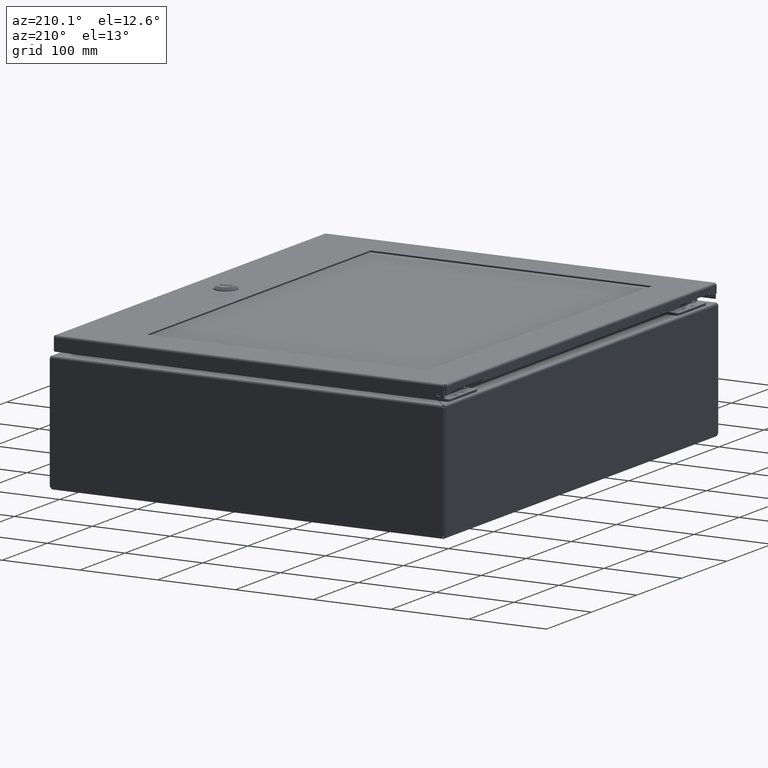
[diagram: clean part render]
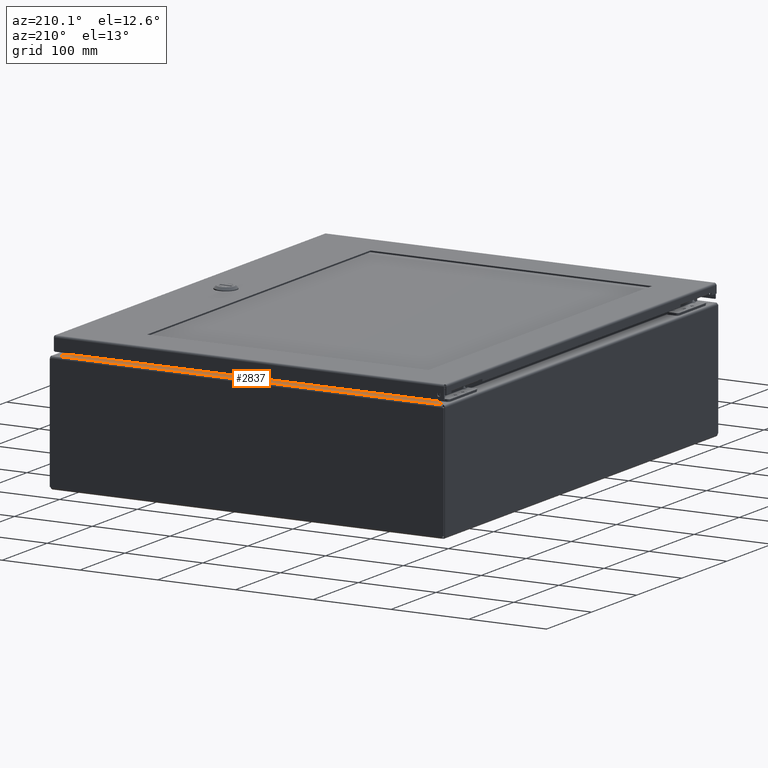
[diagram: same view with one face highlighted and labeled with its STEP entity id]
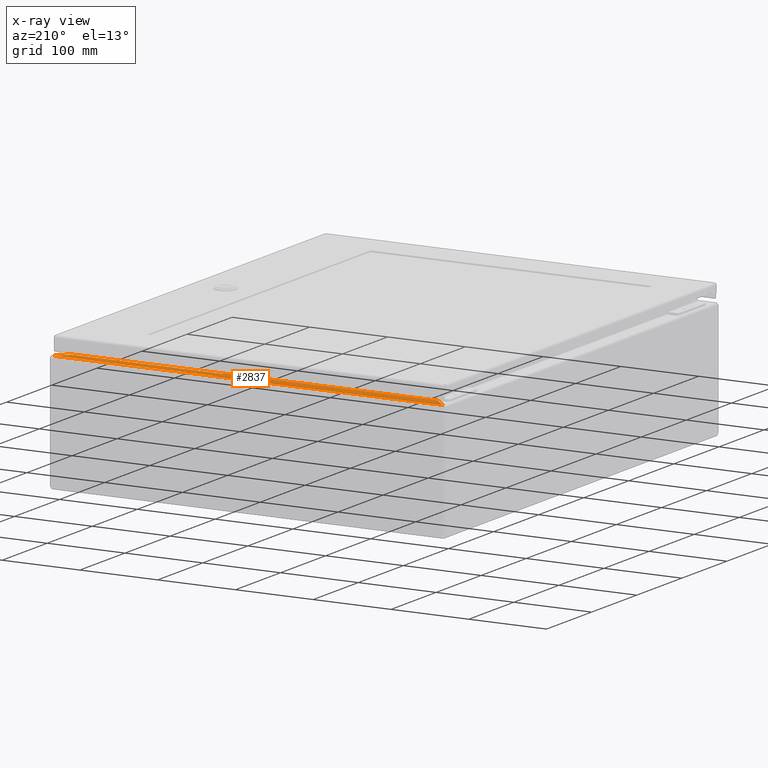
[diagram: x-ray of the same camera — body ghosted, the highlighted face saturated]
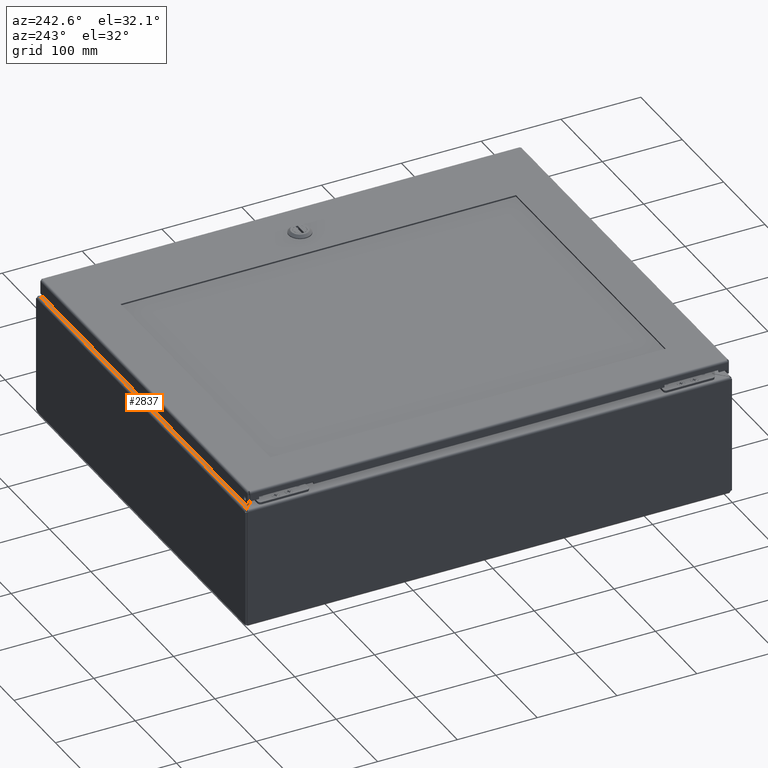
[diagram: same view with one face highlighted and labeled with its STEP entity id]
A machine part, auxiliary view. The second image highlights one B-rep face of the part: STEP entity #2837.
The next image is the same camera in x-ray: the body ghosted, the highlighted face saturated — about 0% of this face is hidden behind the body in this view.
A second angle (auxiliary view) of the same face is appended — the face is thin or edge-on in the first view.
In plain terms, the highlighted planar face has unit normal (0, 0, 1).
Its self-contained STEP definition (entity closure, byte-faithful):
#2143=CARTESIAN_POINT('',(19.281701456543981,23.292749999999685,5.999999999999964));
#2144=VERTEX_POINT('',#2143);
#2191=CARTESIAN_POINT('',(0.718298543456054,23.292749999999675,5.999999999999955));
#2192=VERTEX_POINT('',#2191);
#2217=CARTESIAN_POINT('',(0.718298543456052,23.292749999999678,5.999999999999964));
#2218=DIRECTION('',(1.0,0.0,0.0));
#2219=VECTOR('',#2218,18.563402913087927);
#2220=LINE('',#2217,#2219);
#2221=EDGE_CURVE('',#2192,#2144,#2220,.T.);
#2534=CARTESIAN_POINT('',(0.116298543456031,23.894749999999672,6.000000000000010));
#2535=VERTEX_POINT('',#2534);
#2536=CARTESIAN_POINT('',(0.718298543456053,23.292749999999675,5.999999999999965));
#2537=DIRECTION('',(-0.707106781186549,0.707106781186546,6.363830E-014));
#2538=VECTOR('',#2537,0.851356564548616);
#2539=LINE('',#2536,#2538);
#2540=EDGE_CURVE('',#2192,#2535,#2539,.T.);
#2814=CARTESIAN_POINT('',(10.000000000000004,23.584848115756021,5.999999999999993));
#2815=DIRECTION('',(0.0,0.0,1.0));
#2816=DIRECTION('',(0.0,-1.0,0.0));
#2817=AXIS2_PLACEMENT_3D('',#2814,#2815,#2816);
#2818=PLANE('',#2817);
#2819=ORIENTED_EDGE('',*,*,#2221,.T.);
#2820=CARTESIAN_POINT('',(19.883701456543978,23.894749999999686,6.000000000000018));
#2821=VERTEX_POINT('',#2820);
#2822=CARTESIAN_POINT('',(19.883701456543978,23.894749999999682,6.000000000000022));
#2823=DIRECTION('',(-0.707106781186547,-0.707106781186547,-6.468155E-014));
#2824=VECTOR('',#2823,0.851356564548599);
#2825=LINE('',#2822,#2824);
#2826=EDGE_CURVE('',#2821,#2144,#2825,.T.);
#2827=ORIENTED_EDGE('',*,*,#2826,.F.);
#2828=CARTESIAN_POINT('',(19.883701456543978,23.894749999999686,6.000000000000023));
#2829=DIRECTION('',(-1.0,0.0,0.0));
#2830=VECTOR('',#2829,19.767402913087949);
#2831=LINE('',#2828,#2830);
#2832=EDGE_CURVE('',#2821,#2535,#2831,.T.);
#2833=ORIENTED_EDGE('',*,*,#2832,.T.);
#2834=ORIENTED_EDGE('',*,*,#2540,.F.);
#2835=EDGE_LOOP('',(#2819,#2827,#2833,#2834));
#2836=FACE_OUTER_BOUND('',#2835,.T.);
#2837=ADVANCED_FACE('',(#2836),#2818,.T.);